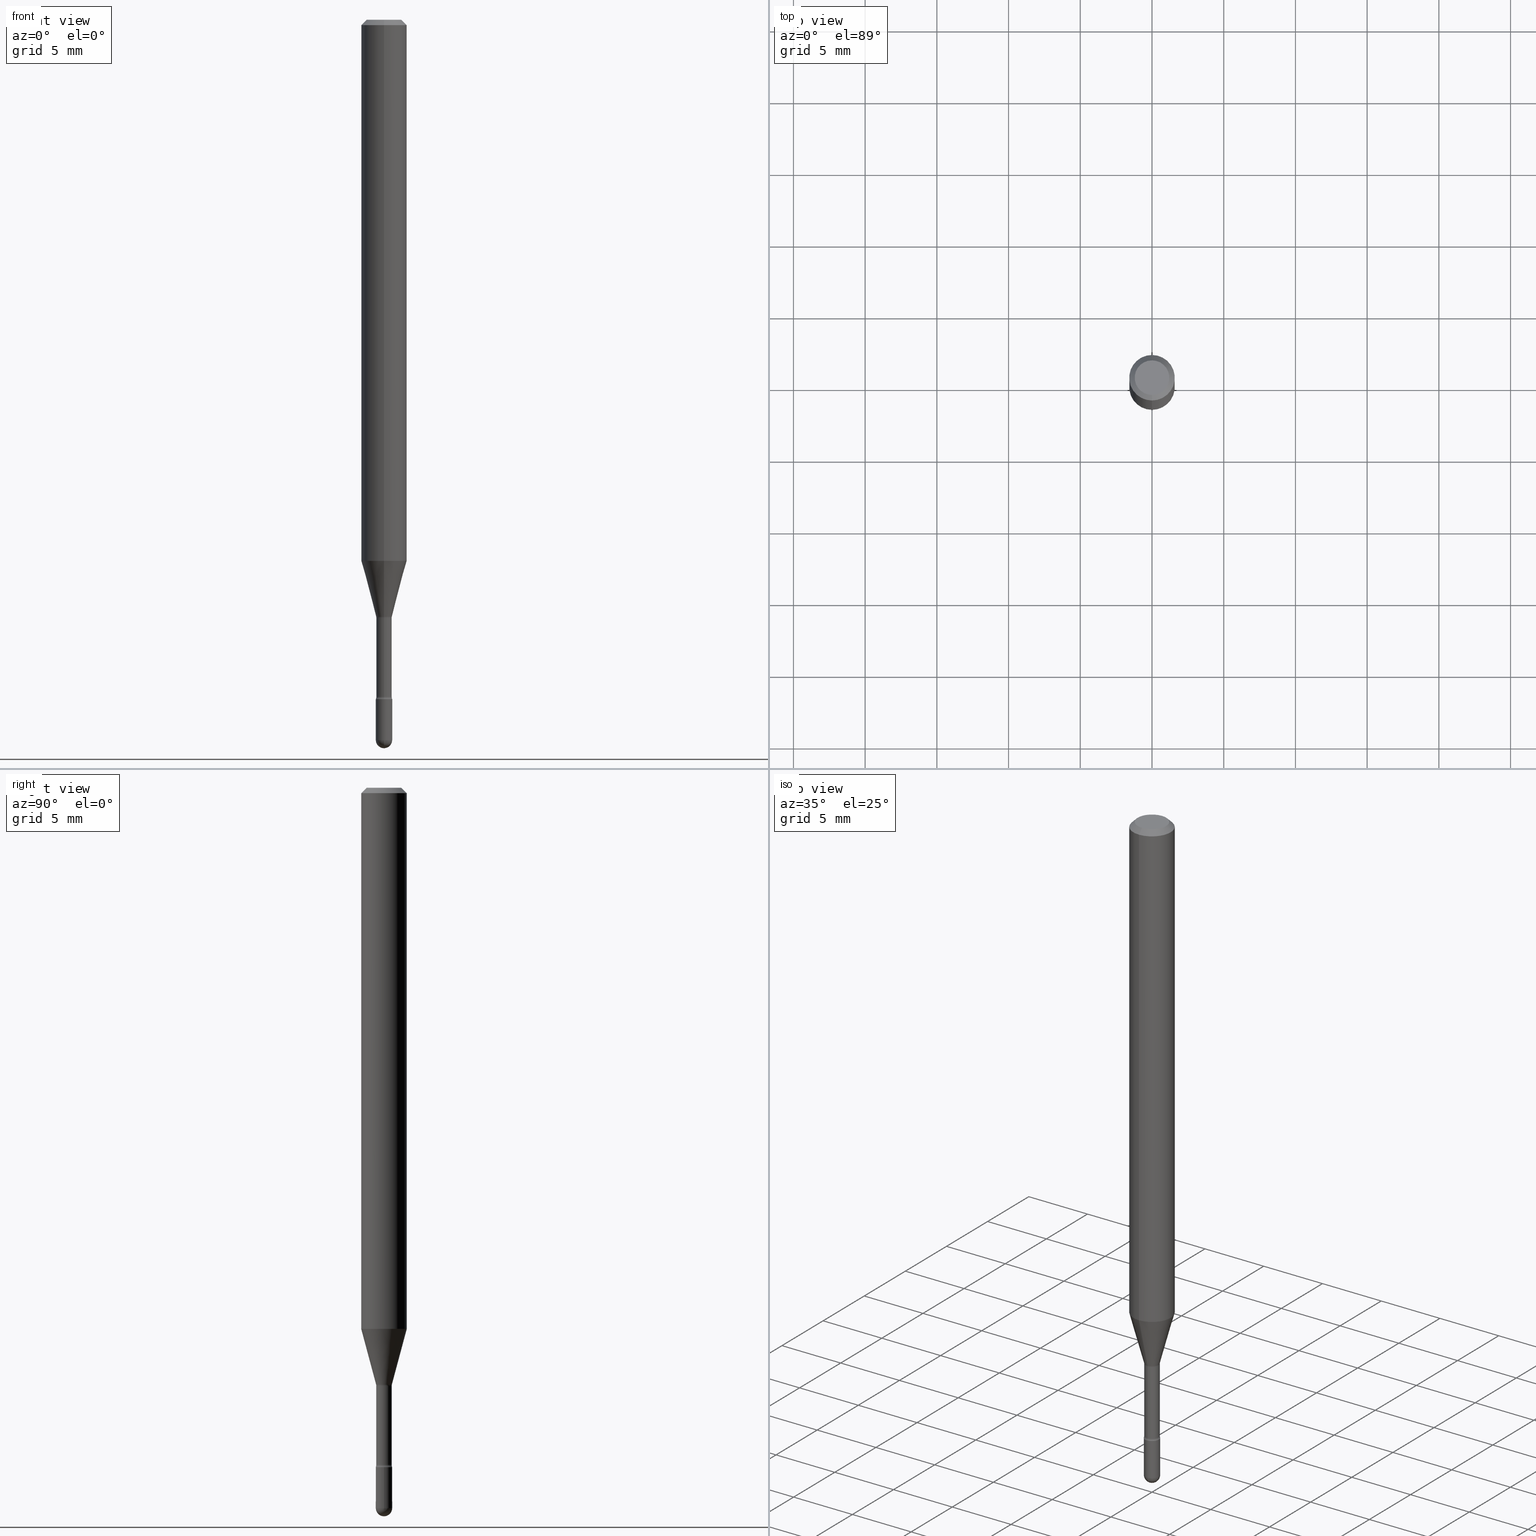
[diagram: canonical four-view strip — front | top / right | iso, engineering-drawing reading convention]
A machine part, canonical four-view strip (front | top / right | iso — engineering-drawing reading convention). The complete STEP part file that produces these views, byte-faithful:
ISO-10303-21;
HEADER;
FILE_DESCRIPTION (( 'STEP AP203' ),
    '1' );
FILE_NAME ('03705.STEP',
    '2024-04-09T20:13:12',
    ( '' ),
    ( '' ),
    'SwSTEP 2.0',
    'SolidWorks 2023',
    '' );
FILE_SCHEMA (( 'CONFIG_CONTROL_DESIGN' ));
ENDSEC;

DATA;
#1 = DIMENSIONAL_EXPONENTS ( 1.000000000000000000, 0.000000000000000000, 0.000000000000000000, 0.000000000000000000, 0.000000000000000000, 0.000000000000000000, 0.000000000000000000 ) ;
#2 = VERTEX_POINT ( 'NONE', #272 ) ;
#3 = DIRECTION ( 'NONE',  ( -2.445468806185136877E-29, 3.491481338843145188E-15, 1.000000000000000000 ) ) ;
#4 = PERSON_AND_ORGANIZATION_ROLE ( 'design_owner' ) ;
#5 = CARTESIAN_POINT ( 'NONE',  ( -1.476896606330243195E-16, -0.02115000000000572325, -1.641974787463811314 ) ) ;
#6 = CIRCLE ( 'NONE', #352, 0.02166111260566391111 ) ;
#7 = CONICAL_SURFACE ( 'NONE', #110, 0.02166111260566391111, 0.2617993877991491858 ) ;
#8 = DIRECTION ( 'NONE',  ( -1.000000000000000000, 7.105427357601001070E-15, -4.926315508542082329E-29 ) ) ;
#9 = DIRECTION ( 'NONE',  ( 2.445448411805292679E-29, -3.491510544755857519E-15, -1.000000000000000000 ) ) ;
#10 = ADVANCED_FACE ( 'NONE', ( #18 ), #94, .T. ) ;
#11 = FACE_OUTER_BOUND ( 'NONE', #365, .T. ) ;
#12 = APPLICATION_PROTOCOL_DEFINITION ( 'international standard', 'config_control_design', 1994, #174 ) ;
#13 = DIRECTION ( 'NONE',  ( 1.000000000000000000, -7.105427357601001070E-15, 4.926315866211357122E-29 ) ) ;
#14 = EDGE_LOOP ( 'NONE', ( #114, #245, #108, #411 ) ) ;
#15 = AXIS2_PLACEMENT_3D ( 'NONE', #214, #387, #388 ) ;
#16 = PERSON_AND_ORGANIZATION_ROLE ( 'creator' ) ;
#17 = AXIS2_PLACEMENT_3D ( 'NONE', #274, #224, #91 ) ;
#18 = FACE_OUTER_BOUND ( 'NONE', #413, .T. ) ;
#19 = ORIENTED_EDGE ( 'NONE', *, *, #294, .F. ) ;
#20 = DIRECTION ( 'NONE',  ( -6.982962677686266711E-15, -1.000000000000000000, 0.000000000000000000 ) ) ;
#21 = PERSON_AND_ORGANIZATION ( #545, #329 ) ;
#22 = ORIENTED_EDGE ( 'NONE', *, *, #310, .F. ) ;
#23 = EDGE_LOOP ( 'NONE', ( #546, #132, #239, #22 ) ) ;
#24 = COORDINATED_UNIVERSAL_TIME_OFFSET ( 5, 0, .BEHIND. ) ;
#25 = UNCERTAINTY_MEASURE_WITH_UNIT (LENGTH_MEASURE( 1.000000000000000082E-05 ), #320, 'distance_accuracy_value', 'NONE');
#26 = EDGE_LOOP ( 'NONE', ( #293, #415, #429, #35, #330 ) ) ;
#27 = ORIENTED_EDGE ( 'NONE', *, *, #478, .F. ) ;
#28 = DIRECTION ( 'NONE',  ( -6.982962677686265922E-15, -1.000000000000000000, 3.491510544755857914E-15 ) ) ;
#29 = VERTEX_POINT ( 'NONE', #551 ) ;
#30 = ORIENTED_EDGE ( 'NONE', *, *, #565, .F. ) ;
#31 = PERSON_AND_ORGANIZATION ( #545, #329 ) ;
#32 = EDGE_CURVE ( 'NONE', #122, #2, #284, .T. ) ;
#33 = CARTESIAN_POINT ( 'NONE',  ( 2.023404556267111999E-45, -2.889212538892800665E-31, -8.274564479069149536E-17 ) ) ;
#34 = APPROVAL_ROLE ( '' ) ;
#35 = ORIENTED_EDGE ( 'NONE', *, *, #376, .T. ) ;
#36 = FACE_OUTER_BOUND ( 'NONE', #92, .T. ) ;
#37 = DIRECTION ( 'NONE',  ( -6.982962677686265922E-15, -1.000000000000000000, 0.000000000000000000 ) ) ;
#38 = AXIS2_PLACEMENT_3D ( 'NONE', #115, #366, #287 ) ;
#39 = AXIS2_PLACEMENT_3D ( 'NONE', #454, #412, #361 ) ;
#40 = AXIS2_PLACEMENT_3D ( 'NONE', #440, #9, #264 ) ;
#41 = ADVANCED_FACE ( 'NONE', ( #402 ), #348, .T. ) ;
#42 = CALENDAR_DATE ( 2024, 9, 4 ) ;
#43 = DIRECTION ( 'NONE',  ( -2.445468806185136597E-29, 3.491481338843145583E-15, 1.000000000000000000 ) ) ;
#44 = APPROVAL_STATUS ( 'not_yet_approved' ) ;
#45 = ORIENTED_EDGE ( 'NONE', *, *, #314, .F. ) ;
#46 = AXIS2_PLACEMENT_3D ( 'NONE', #368, #153, #375 ) ;
#47 = VECTOR ( 'NONE', #534, 39.37007874015748854 ) ;
#48 = VERTEX_POINT ( 'NONE', #192 ) ;
#49 = CARTESIAN_POINT ( 'NONE',  ( 4.835914564231107217E-29, -6.904404347562320349E-15, -1.977499999999999813 ) ) ;
#50 = ORIENTED_EDGE ( 'NONE', *, *, #201, .T. ) ;
#51 = LINE ( 'NONE', #183, #47 ) ;
#52 = EDGE_CURVE ( 'NONE', #278, #446, #267, .T. ) ;
#53 = CARTESIAN_POINT ( 'NONE',  ( 4.015398123285219661E-29, -5.732924329280836621E-15, -1.641974787463811314 ) ) ;
#54 = VECTOR ( 'NONE', #238, 39.37007874015748143 ) ;
#55 = PRODUCT_DEFINITION ( 'UNKNOWN', '', #83, #485 ) ;
#56 = DIRECTION ( 'NONE',  ( -6.982962677686265922E-15, -1.000000000000000000, 3.491510544755857519E-15 ) ) ;
#57 = FACE_OUTER_BOUND ( 'NONE', #369, .T. ) ;
#58 = DIRECTION ( 'NONE',  ( -2.445448411805292679E-29, 3.491510544755857519E-15, 1.000000000000000000 ) ) ;
#59 = DIRECTION ( 'NONE',  ( -2.445448411805292679E-29, 3.491510544755857519E-15, 1.000000000000000000 ) ) ;
#60 = EDGE_LOOP ( 'NONE', ( #481, #325, #285, #172 ) ) ;
#61 = CIRCLE ( 'NONE', #155, 0.02250000000000005121 ) ;
#62 = CIRCLE ( 'NONE', #138, 0.02114999999999999172 ) ;
#63 = APPLICATION_PROTOCOL_DEFINITION ( 'international standard', 'config_control_design', 1994, #90 ) ;
#64 = CC_DESIGN_APPROVAL ( #439, ( #83 ) ) ;
#65 = LINE ( 'NONE', #282, #54 ) ;
#66 = EDGE_LOOP ( 'NONE', ( #112, #371, #207, #150 ) ) ;
#67 = ORIENTED_EDGE ( 'NONE', *, *, #557, .T. ) ;
#68 = VERTEX_POINT ( 'NONE', #508 ) ;
#69 = DIRECTION ( 'NONE',  ( -2.445448411805292679E-29, 3.491510544755857914E-15, 1.000000000000000000 ) ) ;
#70 = CARTESIAN_POINT ( 'NONE',  ( 4.440892098500987066E-16, 0.06249999999999478889, -1.485679699107027352 ) ) ;
#71 = VERTEX_POINT ( 'NONE', #144 ) ;
#72 = DIRECTION ( 'NONE',  ( -2.445448411805292679E-29, 3.491510544755857914E-15, 1.000000000000000000 ) ) ;
#73 = CIRCLE ( 'NONE', #203, 0.02249999999999999917 ) ;
#74 = ORIENTED_EDGE ( 'NONE', *, *, #399, .T. ) ;
#75 = ADVANCED_FACE ( 'NONE', ( #321 ), #328, .T. ) ;
#76 = DIRECTION ( 'NONE',  ( -2.445448411805292679E-29, 3.491510544755857914E-15, 1.000000000000000000 ) ) ;
#77 = DIRECTION ( 'NONE',  ( -2.445448411805292679E-29, 3.491510544755857914E-15, 1.000000000000000000 ) ) ;
#78 = DIRECTION ( 'NONE',  ( -2.445448411805292679E-29, 3.491510544755857914E-15, 1.000000000000000000 ) ) ;
#79 = DATE_AND_TIME ( #42, #473 ) ;
#80 = DIRECTION ( 'NONE',  ( 1.000000000000000000, -6.982962677686269866E-15, 0.000000000000000000 ) ) ;
#81 = CARTESIAN_POINT ( 'NONE',  ( 4.015364636227710403E-29, -5.732972284653155346E-15, -1.641974787463811314 ) ) ;
#82 = PRODUCT_DEFINITION_SHAPE ( 'NONE', 'NONE',  #55 ) ;
#83 = PRODUCT_DEFINITION_FORMATION_WITH_SPECIFIED_SOURCE ( 'ANY', '', #253, .NOT_KNOWN. ) ;
#84 = CLOSED_SHELL ( 'NONE', ( #88, #75, #305, #10, #159, #380, #146, #486, #41, #357, #432, #419, #539, #336 ) ) ;
#85 = DIRECTION ( 'NONE',  ( -2.445468806185136597E-29, 3.491481338843145583E-15, 1.000000000000000000 ) ) ;
#86 = EDGE_LOOP ( 'NONE', ( #45, #410 ) ) ;
#87 = PLANE ( 'NONE',  #227 ) ;
#88 = ADVANCED_FACE ( 'NONE', ( #542 ), #522, .F. ) ;
#89 = CARTESIAN_POINT ( 'NONE',  ( 4.545590650445673704E-29, -6.489898742486526882E-15, -1.858780876267511539 ) ) ;
#90 = APPLICATION_CONTEXT ( 'configuration controlled 3d designs of mechanical parts and assemblies' ) ;
#91 = DIRECTION ( 'NONE',  ( 1.000000000000000000, 0.000000000000000000, 0.000000000000000000 ) ) ;
#92 = EDGE_LOOP ( 'NONE', ( #447, #273, #318, #471, #379 ) ) ;
#93 = CARTESIAN_POINT ( 'NONE',  ( -4.364351673553912750E-16, -0.06250000000000005551, -0.01499999999999986587 ) ) ;
#94 = CONICAL_SURFACE ( 'NONE', #514, 0.06250000000000000000, 0.7853981633974483900 ) ;
#95 = AXIS2_PLACEMENT_3D ( 'NONE', #494, #449, #232 ) ;
#96 = DIRECTION ( 'NONE',  ( -6.982962677686265922E-15, -1.000000000000000000, 3.491510544755857914E-15 ) ) ;
#97 = CARTESIAN_POINT ( 'NONE',  ( 4.835914564231107217E-29, -6.904404347562320349E-15, -1.977499999999999813 ) ) ;
#98 = DIRECTION ( 'NONE',  ( -2.445448411805292679E-29, 3.491510544755857519E-15, 1.000000000000000000 ) ) ;
#99 = EDGE_CURVE ( 'NONE', #475, #231, #279, .T. ) ;
#100 = CIRCLE ( 'NONE', #15, 0.02249999999999999570 ) ;
#101 = CARTESIAN_POINT ( 'NONE',  ( 4.835914564231107217E-29, -6.904404347562320349E-15, -1.977499999999999813 ) ) ;
#102 = CARTESIAN_POINT ( 'NONE',  ( -1.476896606330646007E-16, -0.02115000000000000907, 5.519188469128324018E-16 ) ) ;
#103 = ORIENTED_EDGE ( 'NONE', *, *, #208, .T. ) ;
#104 = CARTESIAN_POINT ( 'NONE',  ( 3.668172617707959513E-31, -5.237265817133816108E-17, -0.01500000000000008271 ) ) ;
#105 = ORIENTED_EDGE ( 'NONE', *, *, #201, .F. ) ;
#106 = PERSON_AND_ORGANIZATION ( #545, #329 ) ;
#107 = DIRECTION ( 'NONE',  ( -4.851104656540964275E-15, -0.7071067811865500152, -0.7071067811865450192 ) ) ;
#108 = ORIENTED_EDGE ( 'NONE', *, *, #393, .T. ) ;
#109 = CONICAL_SURFACE ( 'NONE', #219, 0.02166111260566391111, 0.2617993877991491858 ) ;
#110 = AXIS2_PLACEMENT_3D ( 'NONE', #295, #477, #119 ) ;
#111 = DIRECTION ( 'NONE',  ( -2.445448411805292679E-29, 3.491510544755857914E-15, 1.000000000000000000 ) ) ;
#112 = ORIENTED_EDGE ( 'NONE', *, *, #344, .F. ) ;
#113 = ORIENTED_EDGE ( 'NONE', *, *, #310, .T. ) ;
#114 = ORIENTED_EDGE ( 'NONE', *, *, #181, .F. ) ;
#115 = CARTESIAN_POINT ( 'NONE',  ( -1.169113584055446105E-44, 1.669184350826100908E-30, 4.780733988912460139E-16 ) ) ;
#116 = EDGE_CURVE ( 'NONE', #68, #468, #120, .T. ) ;
#117 = ORIENTED_EDGE ( 'NONE', *, *, #32, .F. ) ;
#118 = PERSON_AND_ORGANIZATION_ROLE ( 'classification_officer' ) ;
#119 = DIRECTION ( 'NONE',  ( -6.982962677686265922E-15, -1.000000000000000000, 0.000000000000000000 ) ) ;
#120 = CIRCLE ( 'NONE', #261, 0.01500000000000001506 ) ;
#121 = TOROIDAL_SURFACE ( 'NONE', #280, 0.03614999999999999464, 0.01500000000000001679 ) ;
#122 = VERTEX_POINT ( 'NONE', #70 ) ;
#123 = CARTESIAN_POINT ( 'NONE',  ( 4.560799323535279574E-29, -6.511612696942466269E-15, -1.864999999999999991 ) ) ;
#124 = DIRECTION ( 'NONE',  ( -2.445448411805292679E-29, 3.491510544755857914E-15, 1.000000000000000000 ) ) ;
#125 = CARTESIAN_POINT ( 'NONE',  ( 0.000000000000000000, 0.000000000000000000, 0.000000000000000000 ) ) ;
#126 = EDGE_CURVE ( 'NONE', #2, #377, #362, .T. ) ;
#127 = SECURITY_CLASSIFICATION_LEVEL ( 'unclassified' ) ;
#128 = DIRECTION ( 'NONE',  ( -6.982962677686265922E-15, -1.000000000000000000, 3.491510544755857914E-15 ) ) ;
#129 = DATE_TIME_ROLE ( 'classification_date' ) ;
#130 = CARTESIAN_POINT ( 'NONE',  ( -2.524341007983131777E-16, -0.03615000000000651026, -1.858780876267511539 ) ) ;
#131 = EDGE_CURVE ( 'NONE', #270, #468, #244, .T. ) ;
#132 = ORIENTED_EDGE ( 'NONE', *, *, #496, .T. ) ;
#133 = FACE_OUTER_BOUND ( 'NONE', #500, .T. ) ;
#134 = EDGE_CURVE ( 'NONE', #205, #377, #269, .T. ) ;
#135 = ORIENTED_EDGE ( 'NONE', *, *, #288, .T. ) ;
#136 = LINE ( 'NONE', #401, #210 ) ;
#137 = VECTOR ( 'NONE', #501, 39.37007874015748143 ) ;
#138 = AXIS2_PLACEMENT_3D ( 'NONE', #81, #124, #392 ) ;
#139 = CIRCLE ( 'NONE', #257, 0.06250000000000000000 ) ;
#140 = CARTESIAN_POINT ( 'NONE',  ( -0.02249999999999999570, -6.548136406706371414E-15, -1.977499999999999813 ) ) ;
#141 = EDGE_CURVE ( 'NONE', #350, #278, #65, .T. ) ;
#142 = FACE_OUTER_BOUND ( 'NONE', #86, .T. ) ;
#143 = DIRECTION ( 'NONE',  ( -7.105427357600999492E-15, -1.000000000000000000, 0.000000000000000000 ) ) ;
#144 = CARTESIAN_POINT ( 'NONE',  ( 4.891899674445600216E-29, -6.981584950037250837E-15, -2.000000000000000000 ) ) ;
#145 = CIRCLE ( 'NONE', #218, 0.02115000000000002642 ) ;
#146 = ADVANCED_FACE ( 'NONE', ( #459 ), #7, .T. ) ;
#147 = CARTESIAN_POINT ( 'NONE',  ( 3.633153060632644623E-29, -5.187266335561894822E-15, -1.485679699107027130 ) ) ;
#148 = APPROVAL_DATE_TIME ( #538, #396 ) ;
#149 = DIRECTION ( 'NONE',  ( -6.982962677686265922E-15, -1.000000000000000000, 3.483106191921935554E-15 ) ) ;
#150 = ORIENTED_EDGE ( 'NONE', *, *, #445, .F. ) ;
#151 = ORIENTED_EDGE ( 'NONE', *, *, #524, .T. ) ;
#152 = CALENDAR_DATE ( 2024, 9, 4 ) ;
#153 = DIRECTION ( 'NONE',  ( -2.445468806185136597E-29, 3.491481338843145583E-15, 1.000000000000000000 ) ) ;
#154 = ORIENTED_EDGE ( 'NONE', *, *, #548, .F. ) ;
#155 = AXIS2_PLACEMENT_3D ( 'NONE', #97, #8, #143 ) ;
#156 = VECTOR ( 'NONE', #59, 39.37007874015748143 ) ;
#157 = DATE_AND_TIME ( #152, #254 ) ;
#158 = CARTESIAN_POINT ( 'NONE',  ( 3.668172617707959513E-31, -5.237265817133816108E-17, -0.01500000000000008271 ) ) ;
#159 = ADVANCED_FACE ( 'NONE', ( #425 ), #520, .T. ) ;
#160 = ORIENTED_EDGE ( 'NONE', *, *, #134, .T. ) ;
#161 = DIRECTION ( 'NONE',  ( -6.982962677686265922E-15, -1.000000000000000000, 3.483106191921935554E-15 ) ) ;
#162 = ORIENTED_EDGE ( 'NONE', *, *, #99, .F. ) ;
#163 = CYLINDRICAL_SURFACE ( 'NONE', #566, 0.02249999999999999917 ) ;
#164 = VERTEX_POINT ( 'NONE', #213 ) ;
#165 = AXIS2_PLACEMENT_3D ( 'NONE', #101, #177, #268 ) ;
#166 = EDGE_CURVE ( 'NONE', #350, #164, #100, .T. ) ;
#167 = AXIS2_PLACEMENT_3D ( 'NONE', #428, #43, #170 ) ;
#168 = CIRCLE ( 'NONE', #484, 0.02249999999999999570 ) ;
#169 = COORDINATED_UNIVERSAL_TIME_OFFSET ( 5, 0, .BEHIND. ) ;
#170 = DIRECTION ( 'NONE',  ( 1.000000000000000000, -6.982962677686266711E-15, 4.876176775795935793E-29 ) ) ;
#171 = LINE ( 'NONE', #343, #383 ) ;
#172 = ORIENTED_EDGE ( 'NONE', *, *, #240, .F. ) ;
#173 = AXIS2_PLACEMENT_3D ( 'NONE', #130, #381, #474 ) ;
#174 = APPLICATION_CONTEXT ( 'configuration controlled 3d designs of mechanical parts and assemblies' ) ;
#175 = DIRECTION ( 'NONE',  ( -2.445448411805292679E-29, 3.491510544755857914E-15, 1.000000000000000000 ) ) ;
#176 = MANIFOLD_SOLID_BREP ( 'Body-Move/Copy2[2]', #84 ) ;
#177 = DIRECTION ( 'NONE',  ( 1.000000000000000000, -6.982962677686265922E-15, 4.883557194083112340E-29 ) ) ;
#178 = CARTESIAN_POINT ( 'NONE',  ( 4.835914564231107217E-29, -6.904404347562320349E-15, -1.977499999999999813 ) ) ;
#179 = AXIS2_PLACEMENT_3D ( 'NONE', #400, #98, #56 ) ;
#180 = AXIS2_PLACEMENT_3D ( 'NONE', #519, #389, #302 ) ;
#181 = EDGE_CURVE ( 'NONE', #29, #122, #171, .T. ) ;
#182 = VECTOR ( 'NONE', #527, 39.37007874015748143 ) ;
#183 = CARTESIAN_POINT ( 'NONE',  ( -1.512587408824705389E-16, -0.02166111260566962876, -1.638092501787273614 ) ) ;
#184 = CARTESIAN_POINT ( 'NONE',  ( 0.02249999999999999570, -6.865125182500334547E-15, -1.977499999999999813 ) ) ;
#185 = ADVANCED_FACE ( 'NONE', ( #469 ), #87, .T. ) ;
#186 = CARTESIAN_POINT ( 'NONE',  ( 4.005870706885846968E-29, -5.719417243275770016E-15, -1.638092501787273614 ) ) ;
#187 = APPROVAL_ROLE ( '' ) ;
#188 = CARTESIAN_POINT ( 'NONE',  ( -4.287811248607203282E-16, -0.06250000000000005551, -0.01499999999999986587 ) ) ;
#189 = CIRCLE ( 'NONE', #390, 0.02249999999999999570 ) ;
#190 = DIRECTION ( 'NONE',  ( 6.982962677686265922E-15, 1.000000000000000000, 0.000000000000000000 ) ) ;
#191 = LENGTH_MEASURE_WITH_UNIT ( LENGTH_MEASURE( 0.02539999999999999897 ), #303 );
#192 = CARTESIAN_POINT ( 'NONE',  ( 1.571166602479895061E-16, 0.02249999999999311925, -1.977499999999999813 ) ) ;
#193 = ORIENTED_EDGE ( 'NONE', *, *, #565, .T. ) ;
#194 = CARTESIAN_POINT ( 'NONE',  ( 3.668172617707959513E-31, -5.237265817133816108E-17, -0.01500000000000008271 ) ) ;
#195 = APPROVAL_STATUS ( 'not_yet_approved' ) ;
#196 = ORIENTED_EDGE ( 'NONE', *, *, #166, .F. ) ;
#197 = VERTEX_POINT ( 'NONE', #209 ) ;
#198 = CC_DESIGN_PERSON_AND_ORGANIZATION_ASSIGNMENT ( #495, #4, ( #253 ) ) ;
#199 = DIRECTION ( 'NONE',  ( -6.982962677686266711E-15, -1.000000000000000000, 0.000000000000000000 ) ) ;
#200 = ORIENTED_EDGE ( 'NONE', *, *, #296, .T. ) ;
#201 = EDGE_CURVE ( 'NONE', #468, #525, #299, .T. ) ;
#202 = SPHERICAL_SURFACE ( 'NONE', #276, 0.02250000000000005121 ) ;
#203 = AXIS2_PLACEMENT_3D ( 'NONE', #297, #251, #423 ) ;
#204 = EDGE_LOOP ( 'NONE', ( #154, #200, #113, #433 ) ) ;
#205 = VERTEX_POINT ( 'NONE', #259 ) ;
#206 = CARTESIAN_POINT ( 'NONE',  ( 1.598721155460680926E-16, 0.02249999999999348008, -1.864999999999999991 ) ) ;
#207 = ORIENTED_EDGE ( 'NONE', *, *, #277, .F. ) ;
#208 = EDGE_CURVE ( 'NONE', #506, #205, #398, .T. ) ;
#209 = CARTESIAN_POINT ( 'NONE',  ( -1.571166602478953358E-16, -0.02250000000000650438, -1.864999999999999991 ) ) ;
#210 = VECTOR ( 'NONE', #315, 39.37007874015748143 ) ;
#211 = CARTESIAN_POINT ( 'NONE',  ( -1.476896606330192412E-16, -0.02115000000000651428, -1.858780876267511539 ) ) ;
#212 = CC_DESIGN_SECURITY_CLASSIFICATION ( #355, ( #83 ) ) ;
#213 = CARTESIAN_POINT ( 'NONE',  ( -1.598721155459743168E-16, -0.02250000000000693112, -1.977499999999999813 ) ) ;
#214 = CARTESIAN_POINT ( 'NONE',  ( 4.835914564231107217E-29, -6.904404347562320349E-15, -1.977499999999999813 ) ) ;
#215 = ORIENTED_EDGE ( 'NONE', *, *, #541, .T. ) ;
#216 = CC_DESIGN_PERSON_AND_ORGANIZATION_ASSIGNMENT ( #427, #118, ( #355 ) ) ;
#217 = DIRECTION ( 'NONE',  ( -6.982962677686266711E-15, -1.000000000000000000, 3.491510544755857519E-15 ) ) ;
#218 = AXIS2_PLACEMENT_3D ( 'NONE', #564, #76, #298 ) ;
#219 = AXIS2_PLACEMENT_3D ( 'NONE', #225, #437, #351 ) ;
#220 = LINE ( 'NONE', #531, #182 ) ;
#221 = ORIENTED_EDGE ( 'NONE', *, *, #240, .T. ) ;
#222 = DIRECTION ( 'NONE',  ( -6.982962677686265922E-15, -1.000000000000000000, 3.491510544755857914E-15 ) ) ;
#223 = EDGE_CURVE ( 'NONE', #231, #197, #73, .T. ) ;
#224 = DIRECTION ( 'NONE',  ( 0.000000000000000000, 0.000000000000000000, 1.000000000000000000 ) ) ;
#225 = CARTESIAN_POINT ( 'NONE',  ( 4.005870706885846968E-29, -5.719417243275770016E-15, -1.638092501787273614 ) ) ;
#226 = LOCAL_TIME ( 16, 13, 12.00000000000000000, #466 ) ;
#227 = AXIS2_PLACEMENT_3D ( 'NONE', #123, #378, #384 ) ;
#228 = DIRECTION ( 'NONE',  ( 1.000000000000000000, -6.982962677686269866E-15, 0.000000000000000000 ) ) ;
#229 = DIRECTION ( 'NONE',  ( -2.445448411805292679E-29, 3.491510544755857914E-15, 1.000000000000000000 ) ) ;
#230 = ORIENTED_EDGE ( 'NONE', *, *, #258, .F. ) ;
#231 = VERTEX_POINT ( 'NONE', #206 ) ;
#232 = DIRECTION ( 'NONE',  ( 1.000000000000000000, -6.982962677686269077E-15, 0.000000000000000000 ) ) ;
#233 = CARTESIAN_POINT ( 'NONE',  ( 4.440892098500625669E-16, 0.06250000000000000000, 2.598539898440049683E-16 ) ) ;
#234 = AXIS2_PLACEMENT_3D ( 'NONE', #147, #72, #418 ) ;
#235 = ORIENTED_EDGE ( 'NONE', *, *, #344, .T. ) ;
#236 = AXIS2_PLACEMENT_3D ( 'NONE', #104, #111, #149 ) ;
#237 = LOCAL_TIME ( 16, 13, 12.00000000000000000, #360 ) ;
#238 = DIRECTION ( 'NONE',  ( -2.445468806185136877E-29, 3.491481338843145188E-15, 1.000000000000000000 ) ) ;
#239 = ORIENTED_EDGE ( 'NONE', *, *, #131, .T. ) ;
#240 = EDGE_CURVE ( 'NONE', #270, #197, #417, .T. ) ;
#241 = DIRECTION ( 'NONE',  ( -6.982962677686266711E-15, -1.000000000000000000, 3.491510544755855547E-15 ) ) ;
#242 = ORIENTED_EDGE ( 'NONE', *, *, #208, .F. ) ;
#243 = FACE_OUTER_BOUND ( 'NONE', #66, .T. ) ;
#244 = LINE ( 'NONE', #102, #156 ) ;
#245 = ORIENTED_EDGE ( 'NONE', *, *, #548, .T. ) ;
#246 = CARTESIAN_POINT ( 'NONE',  ( 3.840629472727447874E-16, 0.04749999999999999362, -2.485923956665947374E-16 ) ) ;
#247 = APPROVAL ( #44, 'UNSPECIFIED' ) ;
#248 = EDGE_LOOP ( 'NONE', ( #553, #230, #457, #50 ) ) ;
#249 = DIRECTION ( 'NONE',  ( 1.839019923739592821E-15, 0.2588190451025239036, 0.9659258262890675351 ) ) ;
#250 = PERSON_AND_ORGANIZATION_ROLE ( 'design_supplier' ) ;
#251 = DIRECTION ( 'NONE',  ( -2.445448411805292679E-29, 3.491510544755857914E-15, 1.000000000000000000 ) ) ;
#252 = ADVANCED_FACE ( 'NONE', ( #36 ), #163, .T. ) ;
#253 = PRODUCT ( '03705', '03705', '', ( #431 ) ) ;
#254 = LOCAL_TIME ( 16, 13, 12.00000000000000000, #24 ) ;
#255 = CARTESIAN_POINT ( 'NONE',  ( -0.02249999999999999917, -6.548136406706371414E-15, -1.864999999999999991 ) ) ;
#256 = CLOSED_SHELL ( 'NONE', ( #252, #441, #185, #488, #281 ) ) ;
#257 = AXIS2_PLACEMENT_3D ( 'NONE', #312, #229, #356 ) ;
#258 = EDGE_CURVE ( 'NONE', #68, #29, #317, .T. ) ;
#259 = CARTESIAN_POINT ( 'NONE',  ( -3.773273898774340269E-16, -0.04749999999999999362, 8.310110608521173434E-17 ) ) ;
#260 = SPHERICAL_SURFACE ( 'NONE', #532, 0.02250000000000005121 ) ;
#261 = AXIS2_PLACEMENT_3D ( 'NONE', #499, #503, #199 ) ;
#262 =( GEOMETRIC_REPRESENTATION_CONTEXT ( 3 ) GLOBAL_UNCERTAINTY_ASSIGNED_CONTEXT ( ( #25 ) ) GLOBAL_UNIT_ASSIGNED_CONTEXT ( ( #320, #323, #404 ) ) REPRESENTATION_CONTEXT ( 'NONE', 'WORKASPACE' ) );
#263 = ORIENTED_EDGE ( 'NONE', *, *, #479, .F. ) ;
#264 = DIRECTION ( 'NONE',  ( 6.982962677686265922E-15, 1.000000000000000000, -3.491510544755857519E-15 ) ) ;
#265 = PLANE ( 'NONE',  #40 ) ;
#266 = DIRECTION ( 'NONE',  ( -2.445448411805292679E-29, 3.491510544755857914E-15, 1.000000000000000000 ) ) ;
#267 = CIRCLE ( 'NONE', #46, 0.02249999999999999917 ) ;
#268 = DIRECTION ( 'NONE',  ( 6.982962677686265922E-15, 1.000000000000000000, 0.000000000000000000 ) ) ;
#269 = LINE ( 'NONE', #188, #373 ) ;
#270 = VERTEX_POINT ( 'NONE', #211 ) ;
#271 = CARTESIAN_POINT ( 'NONE',  ( -1.169113584055446105E-44, 1.669184350826100908E-30, 4.780733988912460139E-16 ) ) ;
#272 = CARTESIAN_POINT ( 'NONE',  ( 4.440892098500991996E-16, 0.06249999999999995143, -0.01500000000000030129 ) ) ;
#273 = ORIENTED_EDGE ( 'NONE', *, *, #141, .T. ) ;
#274 = CARTESIAN_POINT ( 'NONE',  ( 0.000000000000000000, 0.000000000000000000, 0.000000000000000000 ) ) ;
#275 = CARTESIAN_POINT ( 'NONE',  ( 3.668172617707959513E-31, -5.237265817133816108E-17, -0.01500000000000008271 ) ) ;
#276 = AXIS2_PLACEMENT_3D ( 'NONE', #374, #498, #190 ) ;
#277 = EDGE_CURVE ( 'NONE', #460, #48, #189, .T. ) ;
#278 = VERTEX_POINT ( 'NONE', #255 ) ;
#279 = CIRCLE ( 'NONE', #354, 0.01499999999999999424 ) ;
#280 = AXIS2_PLACEMENT_3D ( 'NONE', #53, #397, #96 ) ;
#281 = ADVANCED_FACE ( 'NONE', ( #512 ), #562, .T. ) ;
#282 = CARTESIAN_POINT ( 'NONE',  ( -0.02249999999999999917, 1.598721155460225359E-16, -1.106760395307353780E-30 ) ) ;
#283 = ORIENTED_EDGE ( 'NONE', *, *, #32, .T. ) ;
#284 = LINE ( 'NONE', #233, #467 ) ;
#285 = ORIENTED_EDGE ( 'NONE', *, *, #223, .T. ) ;
#286 = DATE_AND_TIME ( #458, #395 ) ;
#287 = DIRECTION ( 'NONE',  ( -6.982962677686266711E-15, -1.000000000000000000, 3.491510544755855547E-15 ) ) ;
#288 = EDGE_CURVE ( 'NONE', #270, #475, #145, .T. ) ;
#289 = ORIENTED_EDGE ( 'NONE', *, *, #52, .T. ) ;
#290 = AXIS2_PLACEMENT_3D ( 'NONE', #89, #77, #517 ) ;
#291 = DIRECTION ( 'NONE',  ( 1.000000000000000000, -6.982962677686266711E-15, 4.876176775795935793E-29 ) ) ;
#292 = AXIS2_PLACEMENT_3D ( 'NONE', #533, #535, #326 ) ;
#293 = ORIENTED_EDGE ( 'NONE', *, *, #141, .F. ) ;
#294 = EDGE_CURVE ( 'NONE', #205, #506, #482, .T. ) ;
#295 = CARTESIAN_POINT ( 'NONE',  ( 4.005870706885846968E-29, -5.719417243275770016E-15, -1.638092501787273614 ) ) ;
#296 = EDGE_CURVE ( 'NONE', #29, #525, #424, .T. ) ;
#297 = CARTESIAN_POINT ( 'NONE',  ( 4.560761288016870378E-29, -6.511667165969674215E-15, -1.864999999999999991 ) ) ;
#298 = DIRECTION ( 'NONE',  ( -6.982962677686266711E-15, -1.000000000000000000, 0.000000000000000000 ) ) ;
#299 = CIRCLE ( 'NONE', #406, 0.02114999999999999172 ) ;
#300 = PERSON_AND_ORGANIZATION ( #545, #329 ) ;
#301 = DIRECTION ( 'NONE',  ( -2.445448411805292679E-29, 3.491510544755857914E-15, 1.000000000000000000 ) ) ;
#302 = DIRECTION ( 'NONE',  ( 7.105427357601001859E-15, 1.000000000000000000, 0.000000000000000000 ) ) ;
#303 =( LENGTH_UNIT ( ) NAMED_UNIT ( * ) SI_UNIT ( $, .METRE. ) );
#304 = CC_DESIGN_PERSON_AND_ORGANIZATION_ASSIGNMENT ( #416, #403, ( #83 ) ) ;
#305 = ADVANCED_FACE ( 'NONE', ( #476 ), #308, .F. ) ;
#306 = CIRCLE ( 'NONE', #95, 0.02249999999999999917 ) ;
#307 = CARTESIAN_POINT ( 'NONE',  ( 4.545590650445673704E-29, -6.489898742486526882E-15, -1.858780876267511539 ) ) ;
#308 = TOROIDAL_SURFACE ( 'NONE', #290, 0.03615000000000002239, 0.01499999999999999424 ) ;
#309 = APPROVAL_PERSON_ORGANIZATION ( #462, #439, #367 ) ;
#310 = EDGE_CURVE ( 'NONE', #525, #468, #62, .T. ) ;
#311 = APPROVAL_STATUS ( 'not_yet_approved' ) ;
#312 = CARTESIAN_POINT ( 'NONE',  ( 3.633153060632644623E-29, -5.187266335561894822E-15, -1.485679699107027130 ) ) ;
#313 = DIRECTION ( 'NONE',  ( -2.445448411805292679E-29, 3.491510544755857914E-15, 1.000000000000000000 ) ) ;
#314 = EDGE_CURVE ( 'NONE', #197, #231, #455, .T. ) ;
#315 = DIRECTION ( 'NONE',  ( -2.445448411805292679E-29, 3.491510544755857519E-15, 1.000000000000000000 ) ) ;
#316 = CARTESIAN_POINT ( 'NONE',  ( 2.568611989773217851E-16, 0.03614999999999353453, -1.858780876267511539 ) ) ;
#317 = CIRCLE ( 'NONE', #434, 0.02166111260566391111 ) ;
#318 = ORIENTED_EDGE ( 'NONE', *, *, #557, .F. ) ;
#319 = DIRECTION ( 'NONE',  ( -6.982962677686265922E-15, -1.000000000000000000, 0.000000000000000000 ) ) ;
#320 =( CONVERSION_BASED_UNIT ( 'INCH', #191 ) LENGTH_UNIT ( ) NAMED_UNIT ( #1 ) );
#321 = FACE_OUTER_BOUND ( 'NONE', #556, .T. ) ;
#322 = EDGE_LOOP ( 'NONE', ( #67, #289 ) ) ;
#323 =( NAMED_UNIT ( * ) PLANE_ANGLE_UNIT ( ) SI_UNIT ( $, .RADIAN. ) );
#324 = ORIENTED_EDGE ( 'NONE', *, *, #181, .T. ) ;
#325 = ORIENTED_EDGE ( 'NONE', *, *, #99, .T. ) ;
#326 = DIRECTION ( 'NONE',  ( 1.000000000000000000, -6.982962677686269866E-15, 0.000000000000000000 ) ) ;
#327 = COORDINATED_UNIVERSAL_TIME_OFFSET ( 5, 0, .BEHIND. ) ;
#328 = CYLINDRICAL_SURFACE ( 'NONE', #504, 0.02115000000000000907 ) ;
#329 = ORGANIZATION ( 'UNSPECIFIED', 'UNSPECIFIED', '' ) ;
#330 = ORIENTED_EDGE ( 'NONE', *, *, #52, .F. ) ;
#331 = AXIS2_PLACEMENT_3D ( 'NONE', #341, #301, #128 ) ;
#332 = CIRCLE ( 'NONE', #234, 0.06250000000000000000 ) ;
#333 = DIRECTION ( 'NONE',  ( 2.445448411805292679E-29, -3.491510544755857914E-15, -1.000000000000000000 ) ) ;
#334 = ORIENTED_EDGE ( 'NONE', *, *, #258, .T. ) ;
#335 = CARTESIAN_POINT ( 'NONE',  ( 1.502797886133066626E-16, 0.02114999999999426020, -1.641974787463811314 ) ) ;
#336 = ADVANCED_FACE ( 'NONE', ( #491 ), #121, .F. ) ;
#337 = ORIENTED_EDGE ( 'NONE', *, *, #134, .F. ) ;
#338 = DIRECTION ( 'NONE',  ( -2.445448411805292679E-29, 3.491510544755857914E-15, 1.000000000000000000 ) ) ;
#339 = DATE_AND_TIME ( #521, #226 ) ;
#340 = ORIENTED_EDGE ( 'NONE', *, *, #345, .F. ) ;
#341 = CARTESIAN_POINT ( 'NONE',  ( -1.169113584055446105E-44, 1.669184350826100908E-30, 4.780733988912460139E-16 ) ) ;
#342 = AXIS2_PLACEMENT_3D ( 'NONE', #271, #69, #28 ) ;
#343 = CARTESIAN_POINT ( 'NONE',  ( 1.539114621044003108E-16, 0.02166111260565818999, -1.638092501787273614 ) ) ;
#344 = EDGE_CURVE ( 'NONE', #71, #164, #61, .T. ) ;
#345 = EDGE_CURVE ( 'NONE', #71, #48, #382, .T. ) ;
#346 = DIRECTION ( 'NONE',  ( -2.445468806185136597E-29, 3.491481338843145583E-15, 1.000000000000000000 ) ) ;
#347 = CARTESIAN_POINT ( 'NONE',  ( 4.005870706885846968E-29, -5.719417243275770016E-15, -1.638092501787273614 ) ) ;
#348 = CONICAL_SURFACE ( 'NONE', #552, 0.06250000000000000000, 0.7853981633974483900 ) ;
#349 = CC_DESIGN_PERSON_AND_ORGANIZATION_ASSIGNMENT ( #31, #250, ( #83 ) ) ;
#350 = VERTEX_POINT ( 'NONE', #140 ) ;
#351 = DIRECTION ( 'NONE',  ( -6.982962677686265922E-15, -1.000000000000000000, 0.000000000000000000 ) ) ;
#352 = AXIS2_PLACEMENT_3D ( 'NONE', #186, #536, #319 ) ;
#353 = DIRECTION ( 'NONE',  ( -2.445468806185136597E-29, 3.491481338843145583E-15, 1.000000000000000000 ) ) ;
#354 = AXIS2_PLACEMENT_3D ( 'NONE', #316, #13, #463 ) ;
#355 = SECURITY_CLASSIFICATION ( '', '', #127 ) ;
#356 = DIRECTION ( 'NONE',  ( -6.982962677686265922E-15, -1.000000000000000000, 4.370956789862821150E-15 ) ) ;
#357 = ADVANCED_FACE ( 'NONE', ( #530 ), #265, .F. ) ;
#358 = CARTESIAN_POINT ( 'NONE',  ( 1.550759520796874516E-16, 0.02114999999999353855, -1.858780876267511539 ) ) ;
#359 = DIRECTION ( 'NONE',  ( -2.445448411805292679E-29, 3.491510544755857914E-15, 1.000000000000000000 ) ) ;
#360 = COORDINATED_UNIVERSAL_TIME_OFFSET ( 5, 0, .BEHIND. ) ;
#361 = DIRECTION ( 'NONE',  ( -6.982962677686265922E-15, -1.000000000000000000, 3.491510544755857914E-15 ) ) ;
#362 = CIRCLE ( 'NONE', #236, 0.06250000000000000000 ) ;
#363 = AXIS2_PLACEMENT_3D ( 'NONE', #554, #465, #20 ) ;
#364 = CARTESIAN_POINT ( 'NONE',  ( -1.169113584055446105E-44, 1.669184350826100908E-30, 4.780733988912460139E-16 ) ) ;
#365 = EDGE_LOOP ( 'NONE', ( #162, #497, #221, #452 ) ) ;
#366 = DIRECTION ( 'NONE',  ( -2.445448411805292679E-29, 3.491510544755857914E-15, 1.000000000000000000 ) ) ;
#367 = APPROVAL_ROLE ( '' ) ;
#368 = CARTESIAN_POINT ( 'NONE',  ( 4.560799323535279574E-29, -6.511612696942466269E-15, -1.864999999999999991 ) ) ;
#369 = EDGE_LOOP ( 'NONE', ( #334, #324, #493, #464 ) ) ;
#370 = DATE_TIME_ROLE ( 'creation_date' ) ;
#371 = ORIENTED_EDGE ( 'NONE', *, *, #345, .T. ) ;
#372 = ORIENTED_EDGE ( 'NONE', *, *, #131, .F. ) ;
#373 = VECTOR ( 'NONE', #107, 39.37007874015748143 ) ;
#374 = CARTESIAN_POINT ( 'NONE',  ( 4.835914564231107217E-29, -6.904404347562320349E-15, -1.977499999999999813 ) ) ;
#375 = DIRECTION ( 'NONE',  ( 1.000000000000000000, -6.982962677686269077E-15, 0.000000000000000000 ) ) ;
#376 = EDGE_CURVE ( 'NONE', #460, #446, #444, .T. ) ;
#377 = VERTEX_POINT ( 'NONE', #93 ) ;
#378 = DIRECTION ( 'NONE',  ( -2.438088387897960049E-29, 3.491481338843145188E-15, 1.000000000000000000 ) ) ;
#379 = ORIENTED_EDGE ( 'NONE', *, *, #277, .T. ) ;
#380 = ADVANCED_FACE ( 'NONE', ( #57 ), #109, .T. ) ;
#381 = DIRECTION ( 'NONE',  ( -1.000000000000000000, 6.982962677686265922E-15, -4.883557194083112340E-29 ) ) ;
#382 = CIRCLE ( 'NONE', #165, 0.02250000000000005121 ) ;
#383 = VECTOR ( 'NONE', #249, 39.37007874015748854 ) ;
#384 = DIRECTION ( 'NONE',  ( 1.000000000000000000, -6.982962677686265922E-15, 4.876176775795935793E-29 ) ) ;
#385 = APPROVAL_PERSON_ORGANIZATION ( #300, #247, #34 ) ;
#386 = EDGE_CURVE ( 'NONE', #559, #122, #139, .T. ) ;
#387 = DIRECTION ( 'NONE',  ( -2.445468806185136597E-29, 3.491481338843145583E-15, 1.000000000000000000 ) ) ;
#388 = DIRECTION ( 'NONE',  ( 1.000000000000000000, -6.982962677686269866E-15, 0.000000000000000000 ) ) ;
#389 = DIRECTION ( 'NONE',  ( 1.000000000000000000, -7.105427357601001070E-15, 4.926315866211357122E-29 ) ) ;
#390 = AXIS2_PLACEMENT_3D ( 'NONE', #518, #85, #80 ) ;
#391 = ORIENTED_EDGE ( 'NONE', *, *, #386, .T. ) ;
#392 = DIRECTION ( 'NONE',  ( -6.982962677686266711E-15, -1.000000000000000000, 0.000000000000000000 ) ) ;
#393 = EDGE_CURVE ( 'NONE', #68, #559, #51, .T. ) ;
#394 = CARTESIAN_POINT ( 'NONE',  ( 0.02249999999999999917, -6.668729357190407112E-15, -1.864999999999999991 ) ) ;
#395 = LOCAL_TIME ( 16, 13, 12.00000000000000000, #327 ) ;
#396 = APPROVAL ( #311, 'UNSPECIFIED' ) ;
#397 = DIRECTION ( 'NONE',  ( -2.445448411805292679E-29, 3.491510544755857914E-15, 1.000000000000000000 ) ) ;
#398 = CIRCLE ( 'NONE', #443, 0.04749999999999999362 ) ;
#399 = EDGE_CURVE ( 'NONE', #475, #525, #136, .T. ) ;
#400 = CARTESIAN_POINT ( 'NONE',  ( 1.571166602479865971E-16, 0.02249999999999349048, -1.864999999999999991 ) ) ;
#401 = CARTESIAN_POINT ( 'NONE',  ( 1.502797886132612291E-16, 0.02115000000000000907, 4.042279508696596260E-16 ) ) ;
#402 = FACE_OUTER_BOUND ( 'NONE', #511, .T. ) ;
#403 = PERSON_AND_ORGANIZATION_ROLE ( 'creator' ) ;
#404 =( NAMED_UNIT ( * ) SI_UNIT ( $, .STERADIAN. ) SOLID_ANGLE_UNIT ( ) );
#405 = DIRECTION ( 'NONE',  ( 6.982962677686265922E-15, 1.000000000000000000, -3.483106191921935554E-15 ) ) ;
#406 = AXIS2_PLACEMENT_3D ( 'NONE', #523, #472, #421 ) ;
#407 = APPROVAL_PERSON_ORGANIZATION ( #106, #396, #187 ) ;
#408 = ORIENTED_EDGE ( 'NONE', *, *, #126, .T. ) ;
#409 = FACE_OUTER_BOUND ( 'NONE', #23, .T. ) ;
#410 = ORIENTED_EDGE ( 'NONE', *, *, #223, .F. ) ;
#411 = ORIENTED_EDGE ( 'NONE', *, *, #541, .F. ) ;
#412 = DIRECTION ( 'NONE',  ( -2.445448411805292679E-29, 3.491510544755857914E-15, 1.000000000000000000 ) ) ;
#413 = EDGE_LOOP ( 'NONE', ( #19, #160, #151, #30 ) ) ;
#414 = DIRECTION ( 'NONE',  ( -2.445448411805292679E-29, 3.491510544755857914E-15, 1.000000000000000000 ) ) ;
#415 = ORIENTED_EDGE ( 'NONE', *, *, #166, .T. ) ;
#416 = PERSON_AND_ORGANIZATION ( #545, #329 ) ;
#417 = CIRCLE ( 'NONE', #173, 0.01499999999999999424 ) ;
#418 = DIRECTION ( 'NONE',  ( -6.982962677686265922E-15, -1.000000000000000000, 4.370956789862821150E-15 ) ) ;
#419 = ADVANCED_FACE ( 'NONE', ( #11 ), #516, .F. ) ;
#420 = ORIENTED_EDGE ( 'NONE', *, *, #479, .T. ) ;
#421 = DIRECTION ( 'NONE',  ( -6.982962677686266711E-15, -1.000000000000000000, 0.000000000000000000 ) ) ;
#422 = SHAPE_DEFINITION_REPRESENTATION ( #82, #438 ) ;
#423 = DIRECTION ( 'NONE',  ( -6.982962677686265133E-15, -1.000000000000000000, 0.000000000000000000 ) ) ;
#424 = CIRCLE ( 'NONE', #180, 0.01500000000000001506 ) ;
#425 = FACE_OUTER_BOUND ( 'NONE', #543, .T. ) ;
#426 = AXIS2_PLACEMENT_3D ( 'NONE', #526, #313, #483 ) ;
#427 = PERSON_AND_ORGANIZATION ( #545, #329 ) ;
#428 = CARTESIAN_POINT ( 'NONE',  ( 0.000000000000000000, 0.000000000000000000, 0.000000000000000000 ) ) ;
#429 = ORIENTED_EDGE ( 'NONE', *, *, #445, .T. ) ;
#430 = CC_DESIGN_DATE_AND_TIME_ASSIGNMENT ( #79, #129, ( #355 ) ) ;
#431 = MECHANICAL_CONTEXT ( 'NONE', #174, 'mechanical' ) ;
#432 = ADVANCED_FACE ( 'NONE', ( #142 ), #490, .F. ) ;
#433 = ORIENTED_EDGE ( 'NONE', *, *, #116, .F. ) ;
#434 = AXIS2_PLACEMENT_3D ( 'NONE', #347, #338, #37 ) ;
#435 = DIRECTION ( 'NONE',  ( -1.000000000000000000, 6.982962677686265922E-15, -4.883557194083111780E-29 ) ) ;
#436 = CIRCLE ( 'NONE', #505, 0.06250000000000000000 ) ;
#437 = DIRECTION ( 'NONE',  ( -2.445448411805292679E-29, 3.491510544755857914E-15, 1.000000000000000000 ) ) ;
#438 = ADVANCED_BREP_SHAPE_REPRESENTATION ( '03705', ( #555, #176, #17 ), #262 ) ;
#439 = APPROVAL ( #195, 'UNSPECIFIED' ) ;
#440 = CARTESIAN_POINT ( 'NONE',  ( 3.316907271900976096E-16, 0.04749999999999999362, 3.181712617437399876E-17 ) ) ;
#441 = ADVANCED_FACE ( 'NONE', ( #133 ), #260, .T. ) ;
#442 = DIRECTION ( 'NONE',  ( 6.982962677686265922E-15, 1.000000000000000000, 0.000000000000000000 ) ) ;
#443 = AXIS2_PLACEMENT_3D ( 'NONE', #33, #78, #558 ) ;
#444 = LINE ( 'NONE', #489, #456 ) ;
#445 = EDGE_CURVE ( 'NONE', #164, #460, #168, .T. ) ;
#446 = VERTEX_POINT ( 'NONE', #394 ) ;
#447 = ORIENTED_EDGE ( 'NONE', *, *, #478, .T. ) ;
#448 = APPROVAL_DATE_TIME ( #286, #439 ) ;
#449 = DIRECTION ( 'NONE',  ( -2.445468806185136597E-29, 3.491481338843145583E-15, 1.000000000000000000 ) ) ;
#450 = CALENDAR_DATE ( 2024, 9, 4 ) ;
#451 = DIRECTION ( 'NONE',  ( 2.445448411805292679E-29, -3.491510544755857914E-15, -1.000000000000000000 ) ) ;
#452 = ORIENTED_EDGE ( 'NONE', *, *, #314, .T. ) ;
#453 = CYLINDRICAL_SURFACE ( 'NONE', #342, 0.06250000000000000000 ) ;
#454 = CARTESIAN_POINT ( 'NONE',  ( 4.015398123285219661E-29, -5.732924329280836621E-15, -1.641974787463811314 ) ) ;
#455 = CIRCLE ( 'NONE', #426, 0.02249999999999999917 ) ;
#456 = VECTOR ( 'NONE', #3, 39.37007874015748143 ) ;
#457 = ORIENTED_EDGE ( 'NONE', *, *, #116, .T. ) ;
#458 = CALENDAR_DATE ( 2024, 9, 4 ) ;
#459 = FACE_OUTER_BOUND ( 'NONE', #14, .T. ) ;
#460 = VERTEX_POINT ( 'NONE', #184 ) ;
#461 = FACE_OUTER_BOUND ( 'NONE', #528, .T. ) ;
#462 = PERSON_AND_ORGANIZATION ( #545, #329 ) ;
#463 = DIRECTION ( 'NONE',  ( 7.105427357601001859E-15, 1.000000000000000000, 0.000000000000000000 ) ) ;
#464 = ORIENTED_EDGE ( 'NONE', *, *, #393, .F. ) ;
#465 = DIRECTION ( 'NONE',  ( -2.445448411805292679E-29, 3.491510544755857914E-15, 1.000000000000000000 ) ) ;
#466 = COORDINATED_UNIVERSAL_TIME_OFFSET ( 5, 0, .BEHIND. ) ;
#467 = VECTOR ( 'NONE', #58, 39.37007874015748143 ) ;
#468 = VERTEX_POINT ( 'NONE', #5 ) ;
#469 = FACE_OUTER_BOUND ( 'NONE', #322, .T. ) ;
#470 = CARTESIAN_POINT ( 'NONE',  ( 2.023404556267111999E-45, -2.889212538892800665E-31, -8.274564479069149536E-17 ) ) ;
#471 = ORIENTED_EDGE ( 'NONE', *, *, #376, .F. ) ;
#472 = DIRECTION ( 'NONE',  ( -2.445448411805292679E-29, 3.491510544755857914E-15, 1.000000000000000000 ) ) ;
#473 = LOCAL_TIME ( 16, 13, 12.00000000000000000, #169 ) ;
#474 = DIRECTION ( 'NONE',  ( -6.982962677686266711E-15, -1.000000000000000000, 0.000000000000000000 ) ) ;
#475 = VERTEX_POINT ( 'NONE', #358 ) ;
#476 = FACE_OUTER_BOUND ( 'NONE', #60, .T. ) ;
#477 = DIRECTION ( 'NONE',  ( -2.445448411805292679E-29, 3.491510544755857914E-15, 1.000000000000000000 ) ) ;
#478 = EDGE_CURVE ( 'NONE', #48, #350, #502, .T. ) ;
#479 = EDGE_CURVE ( 'NONE', #559, #377, #507, .T. ) ;
#480 = CIRCLE ( 'NONE', #363, 0.02115000000000002642 ) ;
#481 = ORIENTED_EDGE ( 'NONE', *, *, #496, .F. ) ;
#482 = CIRCLE ( 'NONE', #537, 0.04749999999999999362 ) ;
#483 = DIRECTION ( 'NONE',  ( -6.982962677686265133E-15, -1.000000000000000000, 0.000000000000000000 ) ) ;
#484 = AXIS2_PLACEMENT_3D ( 'NONE', #49, #353, #228 ) ;
#485 = DESIGN_CONTEXT ( 'detailed design', #90, 'design' ) ;
#486 = ADVANCED_FACE ( 'NONE', ( #461 ), #453, .T. ) ;
#487 = CARTESIAN_POINT ( 'NONE',  ( -4.364351673553553818E-16, -0.06250000000000520417, -1.485679699107026686 ) ) ;
#488 = ADVANCED_FACE ( 'NONE', ( #243 ), #202, .T. ) ;
#489 = CARTESIAN_POINT ( 'NONE',  ( 0.02249999999999999917, -1.571166602479409911E-16, 1.097139774554085483E-30 ) ) ;
#490 = PLANE ( 'NONE',  #179 ) ;
#491 = FACE_OUTER_BOUND ( 'NONE', #248, .T. ) ;
#492 = DIRECTION ( 'NONE',  ( 6.982962677686265922E-15, 1.000000000000000000, -3.483106191921935554E-15 ) ) ;
#493 = ORIENTED_EDGE ( 'NONE', *, *, #386, .F. ) ;
#494 = CARTESIAN_POINT ( 'NONE',  ( 4.560799323535279574E-29, -6.511612696942466269E-15, -1.864999999999999991 ) ) ;
#495 = PERSON_AND_ORGANIZATION ( #545, #329 ) ;
#496 = EDGE_CURVE ( 'NONE', #475, #270, #480, .T. ) ;
#497 = ORIENTED_EDGE ( 'NONE', *, *, #288, .F. ) ;
#498 = DIRECTION ( 'NONE',  ( -1.000000000000000000, 6.982962677686265922E-15, -4.883557194083111780E-29 ) ) ;
#499 = CARTESIAN_POINT ( 'NONE',  ( -2.524341007983183053E-16, -0.03615000000000572616, -1.641974787463811314 ) ) ;
#500 = EDGE_LOOP ( 'NONE', ( #340, #235, #196, #27 ) ) ;
#501 = DIRECTION ( 'NONE',  ( -2.445448411805292679E-29, 3.491510544755857519E-15, 1.000000000000000000 ) ) ;
#502 = CIRCLE ( 'NONE', #292, 0.02249999999999999570 ) ;
#503 = DIRECTION ( 'NONE',  ( -1.000000000000000000, 6.982962677686265922E-15, -4.883557194083112340E-29 ) ) ;
#504 = AXIS2_PLACEMENT_3D ( 'NONE', #364, #414, #241 ) ;
#505 = AXIS2_PLACEMENT_3D ( 'NONE', #194, #359, #161 ) ;
#506 = VERTEX_POINT ( 'NONE', #246 ) ;
#507 = LINE ( 'NONE', #549, #137 ) ;
#508 = CARTESIAN_POINT ( 'NONE',  ( -1.512587408824705389E-16, -0.02166111260566962876, -1.638092501787273614 ) ) ;
#509 = ORIENTED_EDGE ( 'NONE', *, *, #524, .F. ) ;
#510 = CYLINDRICAL_SURFACE ( 'NONE', #38, 0.02115000000000000907 ) ;
#511 = EDGE_LOOP ( 'NONE', ( #337, #242, #193, #408 ) ) ;
#512 = FACE_OUTER_BOUND ( 'NONE', #26, .T. ) ;
#513 = APPROVAL_DATE_TIME ( #339, #247 ) ;
#514 = AXIS2_PLACEMENT_3D ( 'NONE', #275, #333, #492 ) ;
#515 = EDGE_LOOP ( 'NONE', ( #103, #547 ) ) ;
#516 = TOROIDAL_SURFACE ( 'NONE', #560, 0.03615000000000002239, 0.01499999999999999424 ) ;
#517 = DIRECTION ( 'NONE',  ( -6.982962677686265922E-15, -1.000000000000000000, 3.491510544755857914E-15 ) ) ;
#518 = CARTESIAN_POINT ( 'NONE',  ( 4.835914564231107217E-29, -6.904404347562320349E-15, -1.977499999999999813 ) ) ;
#519 = CARTESIAN_POINT ( 'NONE',  ( 2.568611989773163124E-16, 0.03614999999999426311, -1.641974787463811314 ) ) ;
#520 = CYLINDRICAL_SURFACE ( 'NONE', #331, 0.06250000000000000000 ) ;
#521 = CALENDAR_DATE ( 2024, 9, 4 ) ;
#522 = TOROIDAL_SURFACE ( 'NONE', #39, 0.03614999999999999464, 0.01500000000000001679 ) ;
#523 = CARTESIAN_POINT ( 'NONE',  ( 4.015364636227710403E-29, -5.732972284653155346E-15, -1.641974787463811314 ) ) ;
#524 = EDGE_CURVE ( 'NONE', #377, #2, #436, .T. ) ;
#525 = VERTEX_POINT ( 'NONE', #335 ) ;
#526 = CARTESIAN_POINT ( 'NONE',  ( 4.560761288016870378E-29, -6.511667165969674215E-15, -1.864999999999999991 ) ) ;
#527 = DIRECTION ( 'NONE',  ( 4.937700262164548042E-15, 0.7071067811865451302, -0.7071067811865499042 ) ) ;
#528 = EDGE_LOOP ( 'NONE', ( #117, #215, #420, #540 ) ) ;
#529 = PRODUCT_RELATED_PRODUCT_CATEGORY ( 'detail', '', ( #253 ) ) ;
#530 = FACE_OUTER_BOUND ( 'NONE', #515, .T. ) ;
#531 = CARTESIAN_POINT ( 'NONE',  ( 4.364351673553919652E-16, 0.06249999999999995143, -0.01500000000000030129 ) ) ;
#532 = AXIS2_PLACEMENT_3D ( 'NONE', #178, #435, #442 ) ;
#533 = CARTESIAN_POINT ( 'NONE',  ( 4.835914564231107217E-29, -6.904404347562320349E-15, -1.977499999999999813 ) ) ;
#534 = DIRECTION ( 'NONE',  ( -1.807323732225322645E-15, -0.2588190451025171313, 0.9659258262890693114 ) ) ;
#535 = DIRECTION ( 'NONE',  ( -2.445468806185136597E-29, 3.491481338843145583E-15, 1.000000000000000000 ) ) ;
#536 = DIRECTION ( 'NONE',  ( -2.445448411805292679E-29, 3.491510544755857914E-15, 1.000000000000000000 ) ) ;
#537 = AXIS2_PLACEMENT_3D ( 'NONE', #470, #175, #217 ) ;
#538 = DATE_AND_TIME ( #450, #237 ) ;
#539 = ADVANCED_FACE ( 'NONE', ( #409 ), #510, .T. ) ;
#540 = ORIENTED_EDGE ( 'NONE', *, *, #126, .F. ) ;
#541 = EDGE_CURVE ( 'NONE', #122, #559, #332, .T. ) ;
#542 = FACE_OUTER_BOUND ( 'NONE', #204, .T. ) ;
#543 = EDGE_LOOP ( 'NONE', ( #391, #283, #509, #263 ) ) ;
#544 = CC_DESIGN_DATE_AND_TIME_ASSIGNMENT ( #157, #370, ( #55 ) ) ;
#545 = PERSON ( 'UNSPECIFIED', 'UNSPECIFIED', 'UNSPECIFIED', ('UNSPECIFIED'), ('UNSPECIFIED'), ('UNSPECIFIED') ) ;
#546 = ORIENTED_EDGE ( 'NONE', *, *, #399, .F. ) ;
#547 = ORIENTED_EDGE ( 'NONE', *, *, #294, .T. ) ;
#548 = EDGE_CURVE ( 'NONE', #29, #68, #6, .T. ) ;
#549 = CARTESIAN_POINT ( 'NONE',  ( -4.364351673553916201E-16, -0.06250000000000000000, 6.962928079384871582E-16 ) ) ;
#550 = CC_DESIGN_APPROVAL ( #247, ( #355 ) ) ;
#551 = CARTESIAN_POINT ( 'NONE',  ( 2.990003359772496319E-16, 0.02166111260565818999, -1.638092501787273614 ) ) ;
#552 = AXIS2_PLACEMENT_3D ( 'NONE', #158, #451, #405 ) ;
#553 = ORIENTED_EDGE ( 'NONE', *, *, #296, .F. ) ;
#554 = CARTESIAN_POINT ( 'NONE',  ( 4.545552741762436935E-29, -6.489953029878550844E-15, -1.858780876267511539 ) ) ;
#555 = MANIFOLD_SOLID_BREP ( 'Body-Move/Copy2[1]', #256 ) ;
#556 = EDGE_LOOP ( 'NONE', ( #135, #74, #105, #372 ) ) ;
#557 = EDGE_CURVE ( 'NONE', #446, #278, #306, .T. ) ;
#558 = DIRECTION ( 'NONE',  ( -6.982962677686266711E-15, -1.000000000000000000, 3.491510544755857519E-15 ) ) ;
#559 = VERTEX_POINT ( 'NONE', #487 ) ;
#560 = AXIS2_PLACEMENT_3D ( 'NONE', #307, #266, #222 ) ;
#561 = CC_DESIGN_APPROVAL ( #396, ( #55 ) ) ;
#562 = CYLINDRICAL_SURFACE ( 'NONE', #167, 0.02249999999999999917 ) ;
#563 = CC_DESIGN_PERSON_AND_ORGANIZATION_ASSIGNMENT ( #21, #16, ( #55 ) ) ;
#564 = CARTESIAN_POINT ( 'NONE',  ( 4.545552741762436935E-29, -6.489953029878550844E-15, -1.858780876267511539 ) ) ;
#565 = EDGE_CURVE ( 'NONE', #506, #2, #220, .T. ) ;
#566 = AXIS2_PLACEMENT_3D ( 'NONE', #125, #346, #291 ) ;
ENDSEC;
END-ISO-10303-21;
